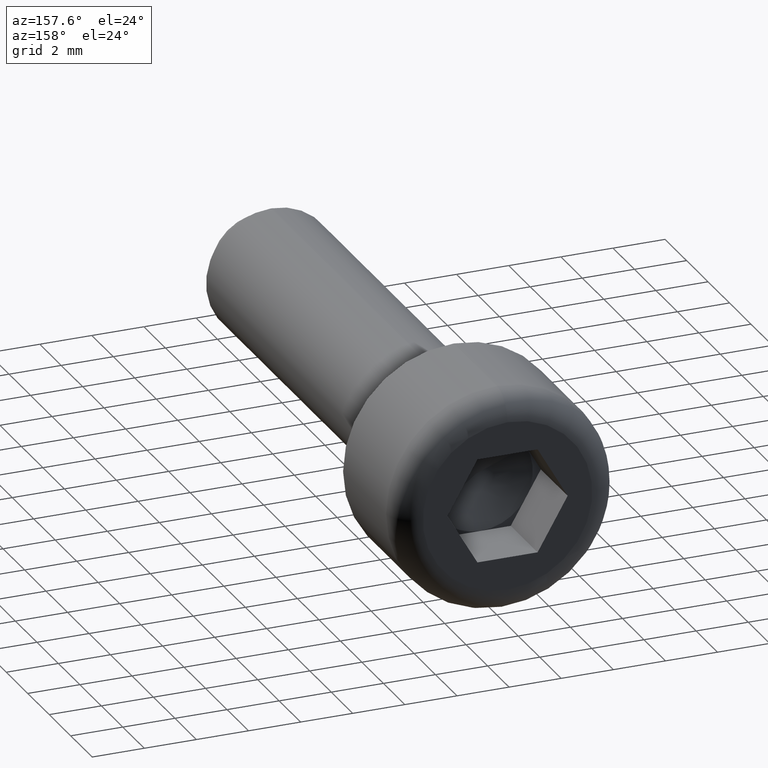
[diagram: clean part render]
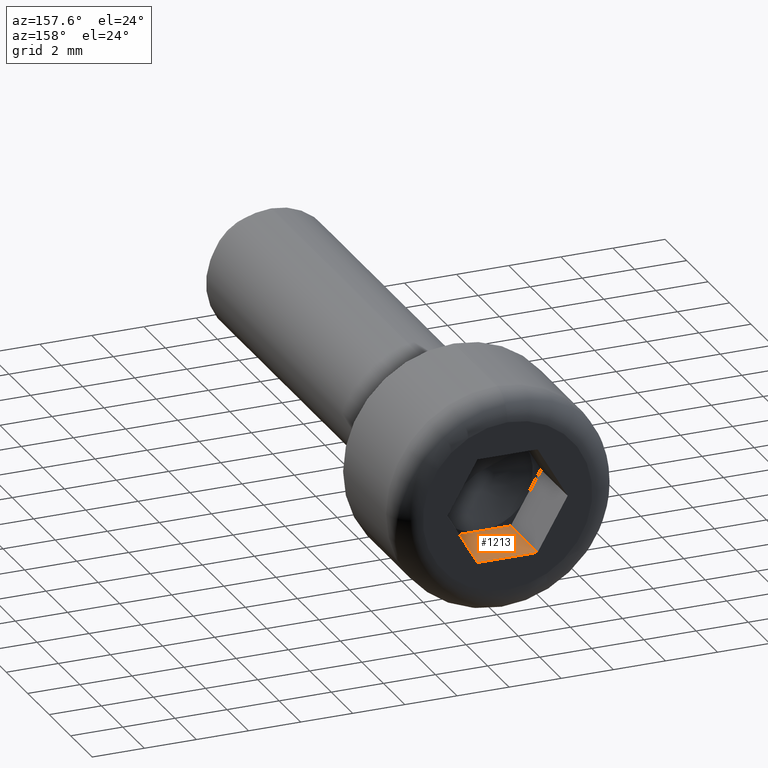
[diagram: same view with one face highlighted and labeled with its STEP entity id]
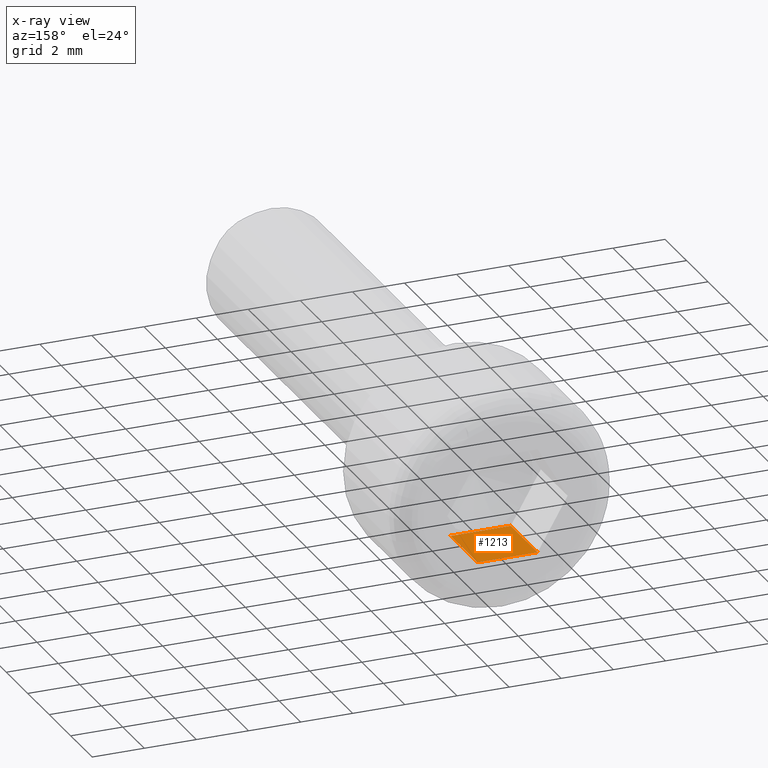
[diagram: x-ray of the same camera — body ghosted, the highlighted face saturated]
A machine part, auxiliary view. The second image highlights one B-rep face of the part: STEP entity #1213.
The next image is the same camera in x-ray: the body ghosted, the highlighted face saturated — about 0% of this face is hidden behind the body in this view.
In plain terms, the highlighted planar face has unit normal (-0, 0, -1).
Its self-contained STEP definition (entity closure, byte-faithful):
#1166 = DIRECTION ( 'NONE',  ( -1.877893248421449800E-016, 0.0000000000000000000, -1.000000000000000000 ) ) ;
#1213 = ADVANCED_FACE ( 'NONE', ( #15573 ), #12344, .F. ) ;
#1720 = CARTESIAN_POINT ( 'NONE',  ( 1.154700538379250800, 2.500000000000000000, -2.000000000000000400 ) ) ;
#2131 = CARTESIAN_POINT ( 'NONE',  ( 1.154700538379250800, 2.500000000000000000, -2.000000000000000400 ) ) ;
#2484 = LINE ( 'NONE', #2131, #9144 ) ;
#3357 = EDGE_CURVE ( 'NONE', #12164, #3381, #2484, .T. ) ;
#3381 = VERTEX_POINT ( 'NONE', #9967 ) ;
#3985 = CARTESIAN_POINT ( 'NONE',  ( -3.496272137581358500E-016, 2.499999999999998200, -2.000000000000000000 ) ) ;
#4390 = EDGE_CURVE ( 'NONE', #3381, #14991, #13245, .T. ) ;
#4412 = ORIENTED_EDGE ( 'NONE', *, *, #12011, .F. ) ;
#4643 = CARTESIAN_POINT ( 'NONE',  ( 1.154700538379250800, 2.500000000000000000, -2.000000000000000400 ) ) ;
#4915 = CARTESIAN_POINT ( 'NONE',  ( 1.154700538379250800, 2.500000000000000000, -2.000000000000000400 ) ) ;
#5134 = AXIS2_PLACEMENT_3D ( 'NONE', #4915, #1166, #14659 ) ;
#5472 = VERTEX_POINT ( 'NONE', #3985 ) ;
#5507 = CARTESIAN_POINT ( 'NONE',  ( -1.154700538379251700, 2.500000000000000000, -2.000000000000000000 ) ) ;
#5525 = DIRECTION ( 'NONE',  ( -1.000000000000000000, 0.0000000000000000000, 1.877893248421449800E-016 ) ) ;
#6752 = VECTOR ( 'NONE', #5525, 1000.000000000000000 ) ;
#6811 = EDGE_LOOP ( 'NONE', ( #8208, #10829, #4412, #15134, #9713 ) ) ;
#7321 = CARTESIAN_POINT ( 'NONE',  ( 1.154700538379250800, 5.000000000000000000, -2.000000000000000400 ) ) ;
#7800 = VERTEX_POINT ( 'NONE', #8200 ) ;
#7913 = VECTOR ( 'NONE', #15603, 1000.000000000000000 ) ;
#8200 = CARTESIAN_POINT ( 'NONE',  ( -1.154700538379251700, 2.500000000000000000, -2.000000000000000000 ) ) ;
#8208 = ORIENTED_EDGE ( 'NONE', *, *, #4390, .T. ) ;
#8232 = DIRECTION ( 'NONE',  ( -0.0000000000000000000, 1.000000000000000000, -0.0000000000000000000 ) ) ;
#9144 = VECTOR ( 'NONE', #8232, 1000.000000000000000 ) ;
#9480 = VECTOR ( 'NONE', #14331, 1000.000000000000000 ) ;
#9713 = ORIENTED_EDGE ( 'NONE', *, *, #3357, .T. ) ;
#9967 = CARTESIAN_POINT ( 'NONE',  ( 1.154700538379250800, 5.000000000000000000, -2.000000000000000400 ) ) ;
#10432 = CARTESIAN_POINT ( 'NONE',  ( 1.154700538379250800, 2.500000000000000000, -2.000000000000000400 ) ) ;
#10480 = CARTESIAN_POINT ( 'NONE',  ( -1.154700538379251700, 5.000000000000000000, -2.000000000000000000 ) ) ;
#10829 = ORIENTED_EDGE ( 'NONE', *, *, #12668, .F. ) ;
#11227 = LINE ( 'NONE', #5507, #7913 ) ;
#12011 = EDGE_CURVE ( 'NONE', #5472, #7800, #12810, .T. ) ;
#12164 = VERTEX_POINT ( 'NONE', #4643 ) ;
#12335 = DIRECTION ( 'NONE',  ( -1.000000000000000000, 0.0000000000000000000, 1.877893248421449800E-016 ) ) ;
#12344 = PLANE ( 'NONE',  #5134 ) ;
#12668 = EDGE_CURVE ( 'NONE', #7800, #14991, #11227, .T. ) ;
#12810 = LINE ( 'NONE', #1720, #9480 ) ;
#12869 = VECTOR ( 'NONE', #12335, 1000.000000000000000 ) ;
#13245 = LINE ( 'NONE', #7321, #12869 ) ;
#14331 = DIRECTION ( 'NONE',  ( -1.000000000000000000, 0.0000000000000000000, 1.877893248421449800E-016 ) ) ;
#14659 = DIRECTION ( 'NONE',  ( -1.000000000000000000, 0.0000000000000000000, 1.877893248421449800E-016 ) ) ;
#14991 = VERTEX_POINT ( 'NONE', #10480 ) ;
#14998 = EDGE_CURVE ( 'NONE', #12164, #5472, #15086, .T. ) ;
#15086 = LINE ( 'NONE', #10432, #6752 ) ;
#15134 = ORIENTED_EDGE ( 'NONE', *, *, #14998, .F. ) ;
#15573 = FACE_OUTER_BOUND ( 'NONE', #6811, .T. ) ;
#15603 = DIRECTION ( 'NONE',  ( -0.0000000000000000000, 1.000000000000000000, -0.0000000000000000000 ) ) ;